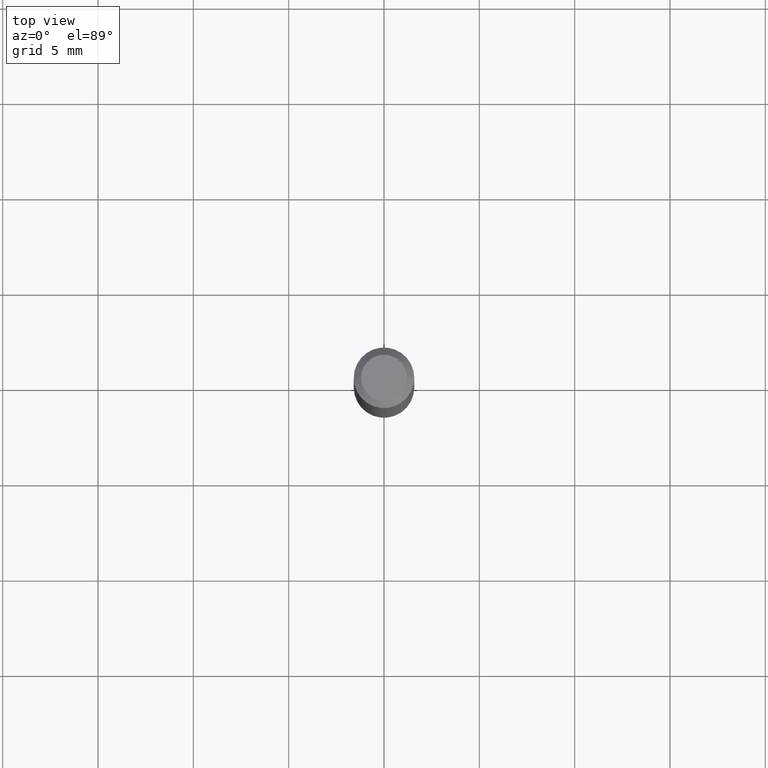
[diagram: clean part render]
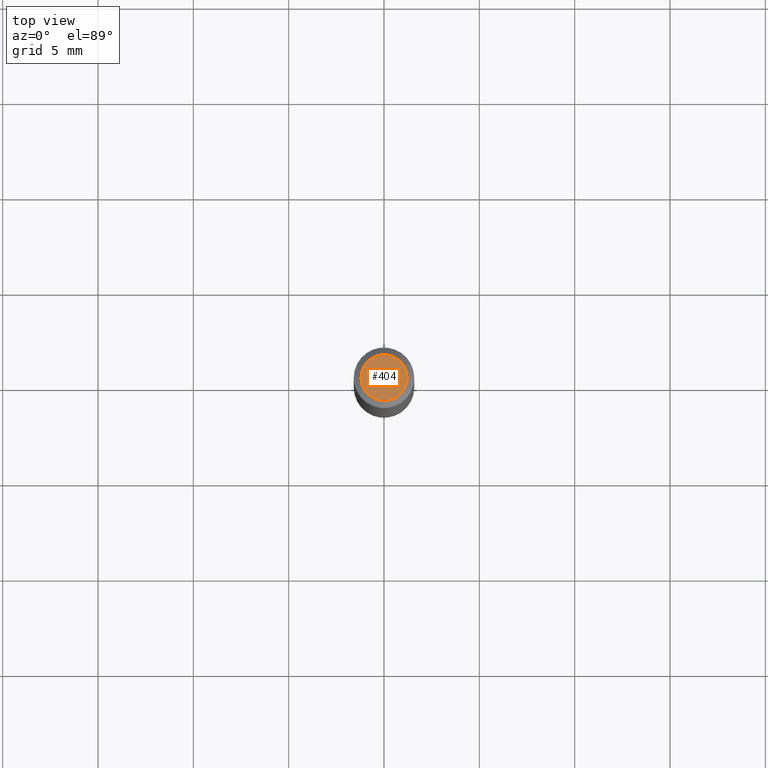
[diagram: same view with one face highlighted and labeled with its STEP entity id]
A machine part, top view. The second image highlights one B-rep face of the part: STEP entity #404.
In plain terms, the highlighted planar face has unit normal (0, -0, -1).
Its self-contained STEP definition (entity closure, byte-faithful):
#19 = CARTESIAN_POINT ( 'NONE',  ( -6.680649051745406845E-45, 9.538196290434862081E-31, 2.731847993664263218E-16 ) ) ;
#21 = VERTEX_POINT ( 'NONE', #387 ) ;
#33 = EDGE_CURVE ( 'NONE', #468, #21, #83, .T. ) ;
#64 = CARTESIAN_POINT ( 'NONE',  ( 0.04750000000000000749, -4.035134999187568762E-16, 2.731847993664288856E-16 ) ) ;
#83 = CIRCLE ( 'NONE', #376, 0.04750000000000000749 ) ;
#112 = EDGE_CURVE ( 'NONE', #21, #468, #128, .T. ) ;
#128 = CIRCLE ( 'NONE', #377, 0.04750000000000000749 ) ;
#132 = FACE_OUTER_BOUND ( 'NONE', #282, .T. ) ;
#257 = DIRECTION ( 'NONE',  ( -1.000000000000000000, 6.982962677686265922E-15, -4.876176775795935793E-29 ) ) ;
#260 = DIRECTION ( 'NONE',  ( -2.445468806185136597E-29, 3.491481338843145583E-15, 1.000000000000000000 ) ) ;
#282 = EDGE_LOOP ( 'NONE', ( #306, #356 ) ) ;
#293 = PLANE ( 'NONE',  #456 ) ;
#306 = ORIENTED_EDGE ( 'NONE', *, *, #112, .T. ) ;
#342 = DIRECTION ( 'NONE',  ( -2.445468806185136597E-29, 3.491481338843145583E-15, 1.000000000000000000 ) ) ;
#345 = DIRECTION ( 'NONE',  ( 1.000000000000000000, -6.982962677686266711E-15, 4.852736867747365086E-29 ) ) ;
#356 = ORIENTED_EDGE ( 'NONE', *, *, #33, .T. ) ;
#376 = AXIS2_PLACEMENT_3D ( 'NONE', #392, #342, #345 ) ;
#377 = AXIS2_PLACEMENT_3D ( 'NONE', #19, #260, #419 ) ;
#387 = CARTESIAN_POINT ( 'NONE',  ( -0.04750000000000000749, 3.578768372314221353E-16, 2.731847993664239060E-16 ) ) ;
#392 = CARTESIAN_POINT ( 'NONE',  ( -6.680649051745406845E-45, 9.538196290434862081E-31, 2.731847993664263218E-16 ) ) ;
#404 = ADVANCED_FACE ( 'NONE', ( #132 ), #293, .F. ) ;
#410 = DIRECTION ( 'NONE',  ( 2.438088387897960049E-29, -3.491481338843145188E-15, -1.000000000000000000 ) ) ;
#419 = DIRECTION ( 'NONE',  ( 1.000000000000000000, -6.982962677686266711E-15, 4.852736867747365086E-29 ) ) ;
#447 = CARTESIAN_POINT ( 'NONE',  ( 3.316907271900976589E-16, 0.04750000000000000749, -2.925296391183627249E-17 ) ) ;
#456 = AXIS2_PLACEMENT_3D ( 'NONE', #447, #410, #257 ) ;
#468 = VERTEX_POINT ( 'NONE', #64 ) ;